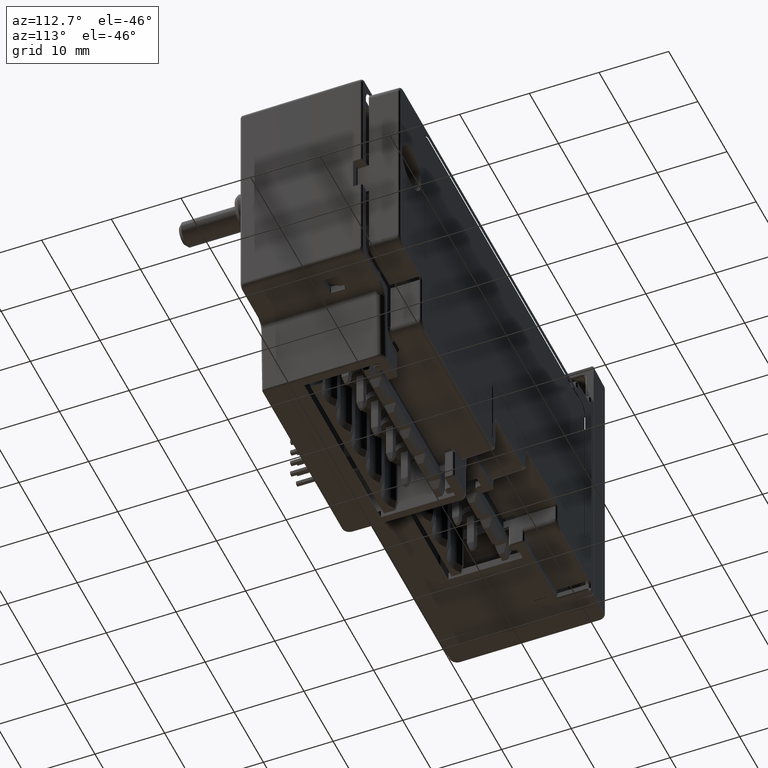
[diagram: clean part render]
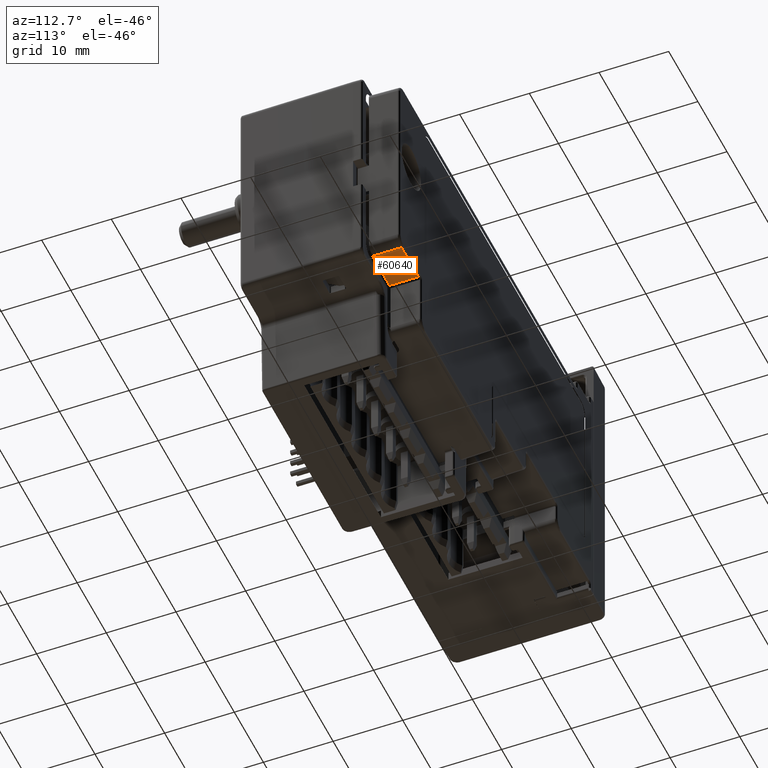
[diagram: same view with one face highlighted and labeled with its STEP entity id]
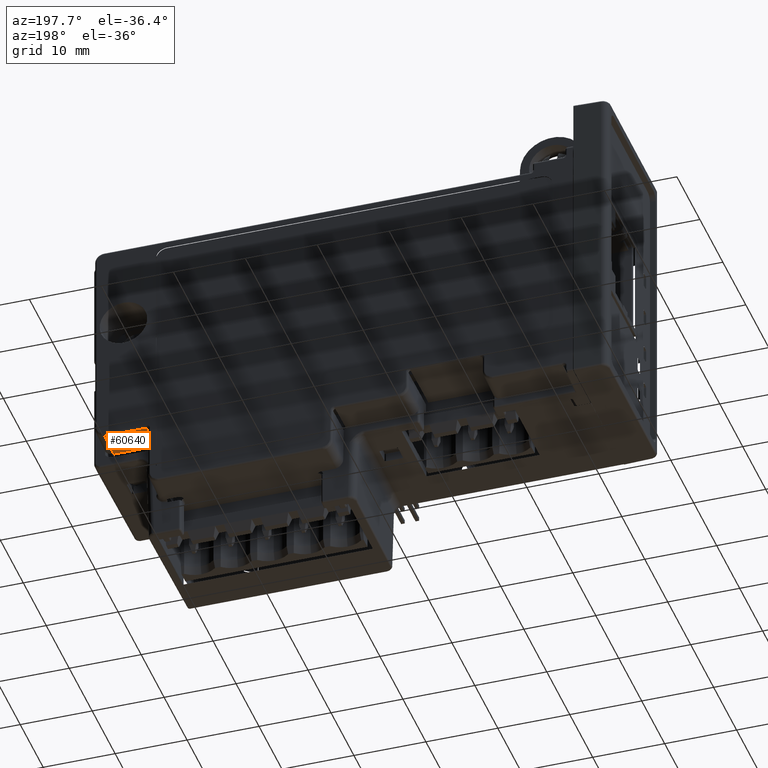
[diagram: same view with one face highlighted and labeled with its STEP entity id]
A machine part, auxiliary view. The second image highlights one B-rep face of the part: STEP entity #60640.
A second angle (auxiliary view) of the same face is appended — the face is thin or edge-on in the first view.
In plain terms, the highlighted planar face has unit normal (0, 0.0175, -0.9998).
Its self-contained STEP definition (entity closure, byte-faithful):
#55331=DIRECTION('',(-9.999999999977E-1,3.727375179955E-8,-2.135835831351E-6));
#55332=VECTOR('',#55331,5.814210297944E0);
#55333=CARTESIAN_POINT('',(3.628615602148E1,7.543674580169E0,
-6.517998395308E0));
#55334=LINE('',#55333,#55332);
#55335=DIRECTION('',(1.745037220618E-2,-9.996954484711E-1,-1.744977982626E-2));
#55336=VECTOR('',#55335,4.111723673379E0);
#55337=CARTESIAN_POINT('',(3.047194572355E1,7.543674796887E0,
-6.518010813507E0));
#55338=LINE('',#55337,#55336);
#55339=DIRECTION('',(1.E0,0.E0,0.E0));
#55340=VECTOR('',#55339,5.814207739693E0);
#55341=CARTESIAN_POINT('',(3.054369683206E1,3.433203355239E0,
-6.589759486313E0));
#55342=LINE('',#55341,#55340);
#55343=DIRECTION('',(1.744975021401E-2,-9.996954066026E-1,-1.745280020839E-2));
#55344=VECTOR('',#55343,4.111723628800E0);
#55345=CARTESIAN_POINT('',(3.628615602148E1,7.543674580169E0,
-6.517998395308E0));
#55346=LINE('',#55345,#55344);
#57348=CARTESIAN_POINT('',(3.047194572355E1,7.543674796887E0,
-6.518010813507E0));
#58735=CARTESIAN_POINT('',(3.635790457175E1,3.433203355239E0,
-6.589759486313E0));
#58736=CARTESIAN_POINT('',(3.054369683206E1,3.433203355239E0,
-6.589759486313E0));
#58737=VERTEX_POINT('',#58735);
#58738=VERTEX_POINT('',#58736);
#58861=VERTEX_POINT('',#57348);
#58864=CARTESIAN_POINT('',(3.628615602148E1,7.543674580169E0,
-6.517998395308E0));
#58865=VERTEX_POINT('',#58864);
#60625=CARTESIAN_POINT('',(3.871120490965E1,3.138439077170E0,
-6.594904615926E0));
#60626=DIRECTION('',(0.E0,1.745240643728E-2,-9.998476951564E-1));
#60627=DIRECTION('',(-1.E0,0.E0,0.E0));
#60628=AXIS2_PLACEMENT_3D('',#60625,#60626,#60627);
#60629=PLANE('',#60628);
#60631=ORIENTED_EDGE('',*,*,#60630,.T.);
#60633=ORIENTED_EDGE('',*,*,#60632,.T.);
#60635=ORIENTED_EDGE('',*,*,#60634,.T.);
#60637=ORIENTED_EDGE('',*,*,#60636,.F.);
#60638=EDGE_LOOP('',(#60631,#60633,#60635,#60637));
#60639=FACE_OUTER_BOUND('',#60638,.F.);
#60640=ADVANCED_FACE('',(#60639),#60629,.T.);
#60630=EDGE_CURVE('',#58865,#58861,#55334,.T.);
#60632=EDGE_CURVE('',#58861,#58738,#55338,.T.);
#60634=EDGE_CURVE('',#58738,#58737,#55342,.T.);
#60636=EDGE_CURVE('',#58865,#58737,#55346,.T.);